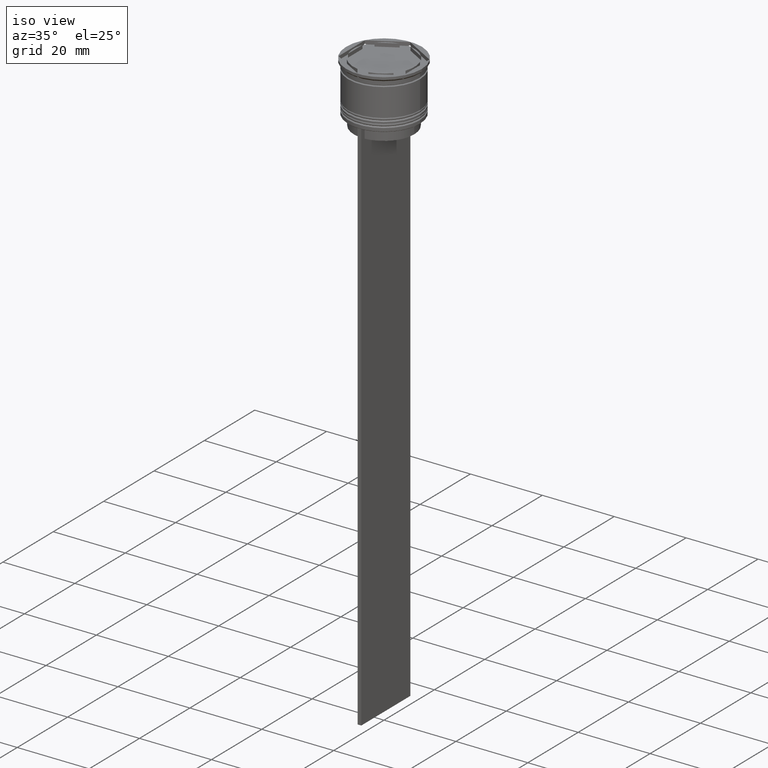
[diagram: clean part render]
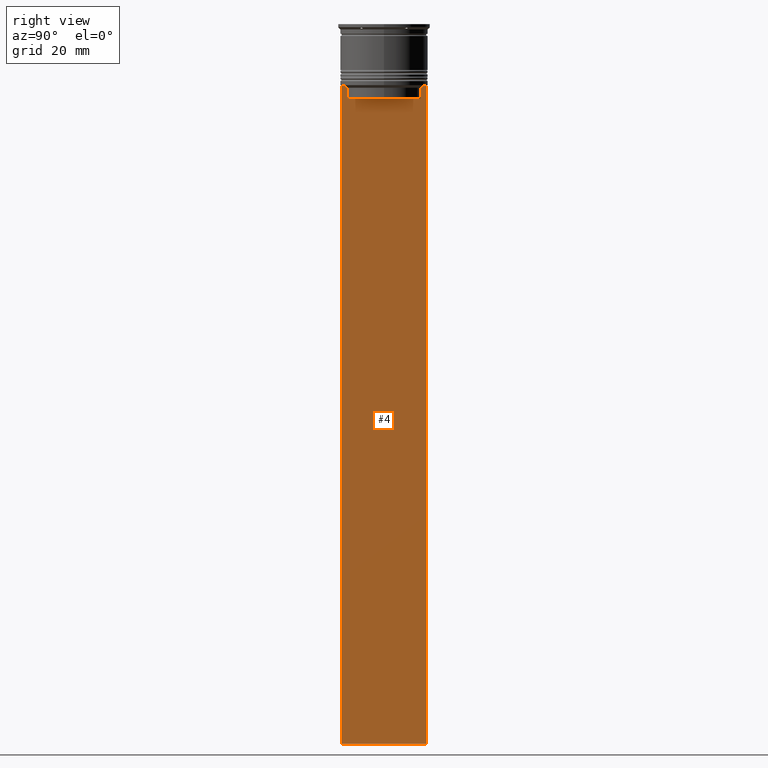
[diagram: tour spotlight — one face highlighted and labeled with its STEP entity id]
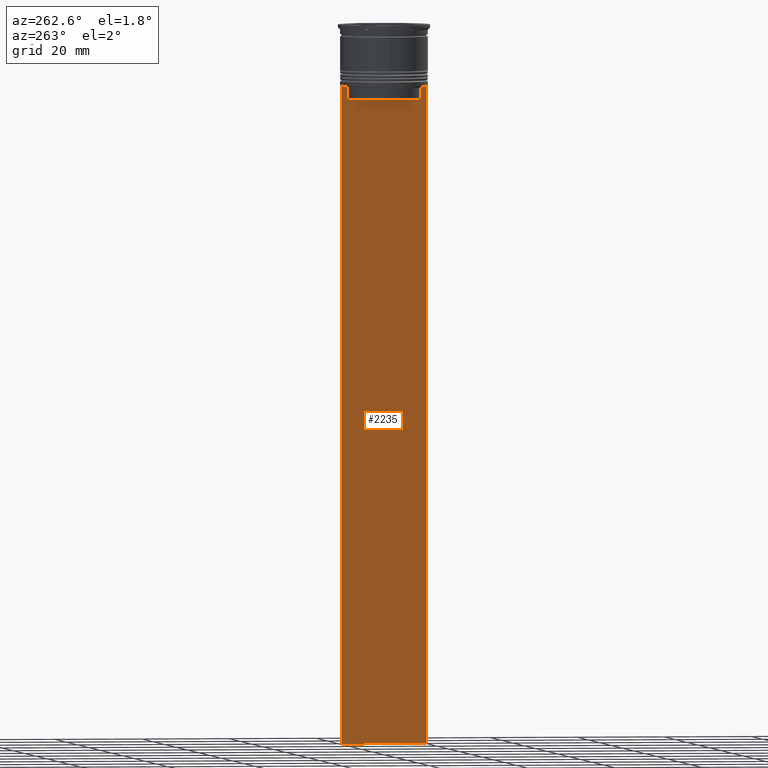
[diagram: tour spotlight — one face highlighted and labeled with its STEP entity id]
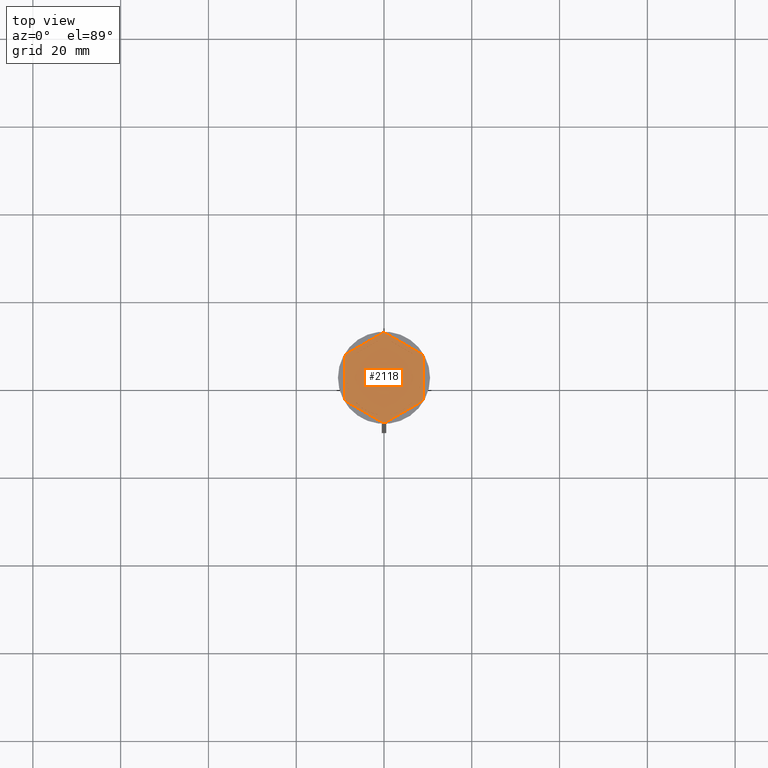
[diagram: tour spotlight — one face highlighted and labeled with its STEP entity id]
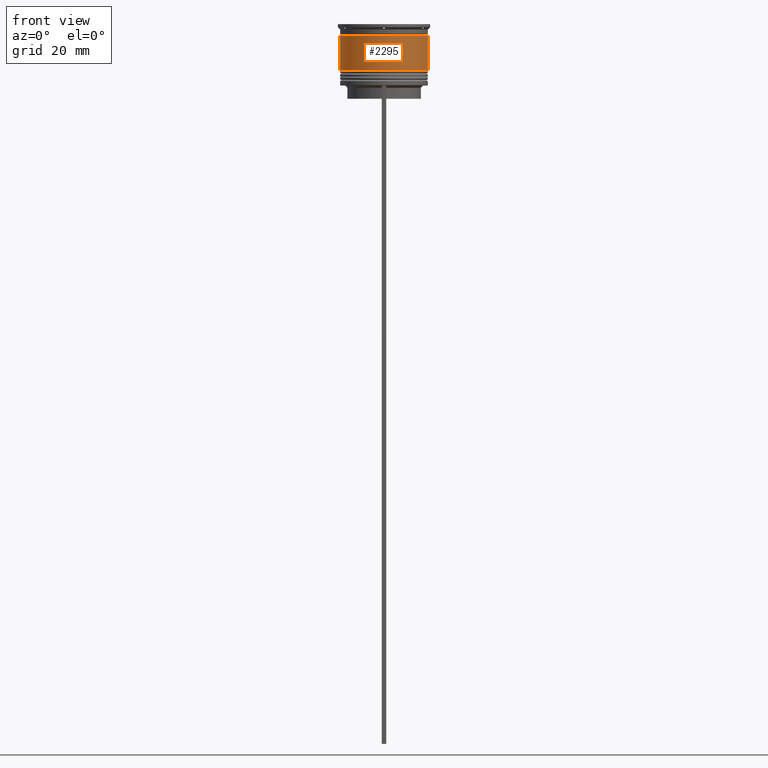
[diagram: tour spotlight — one face highlighted and labeled with its STEP entity id]
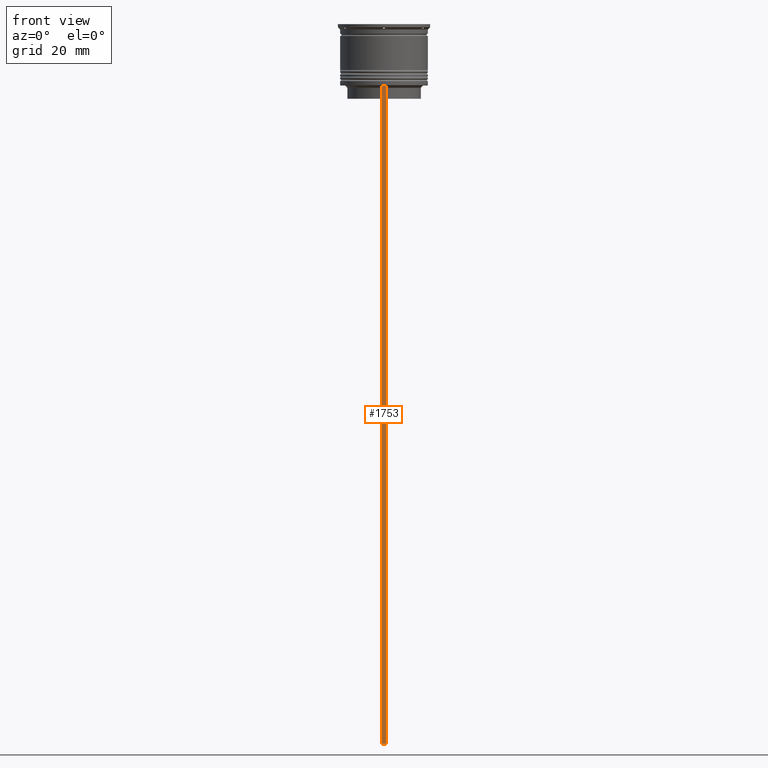
[diagram: tour spotlight — one face highlighted and labeled with its STEP entity id]
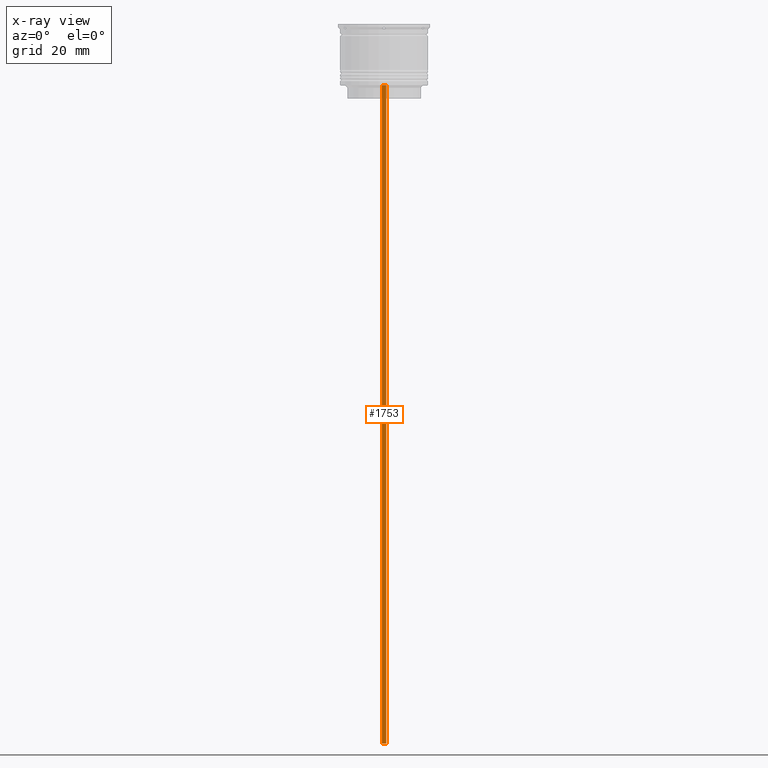
[diagram: x-ray of the same camera — body ghosted, this tour face saturated]
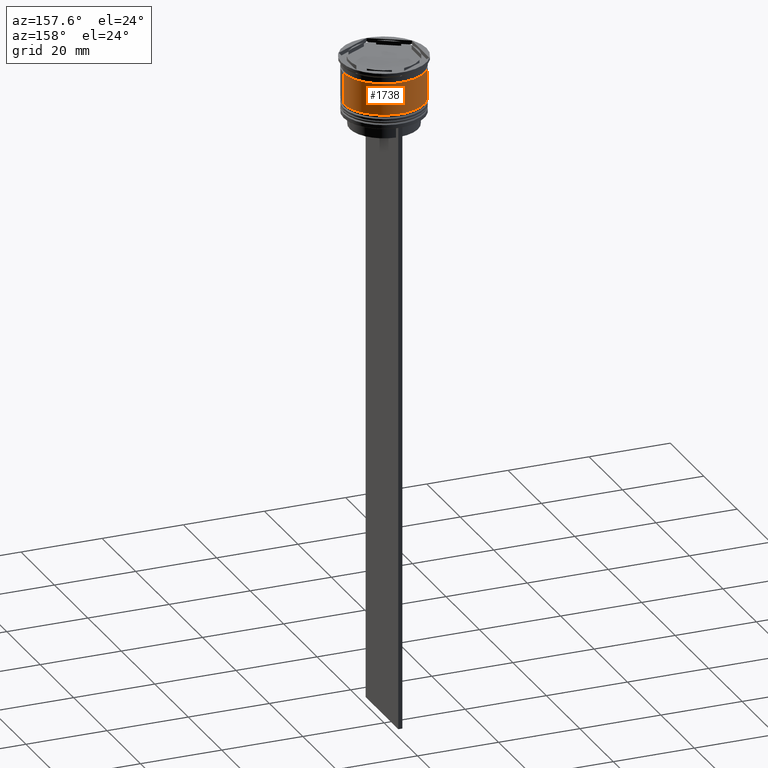
[diagram: tour spotlight — one face highlighted and labeled with its STEP entity id]
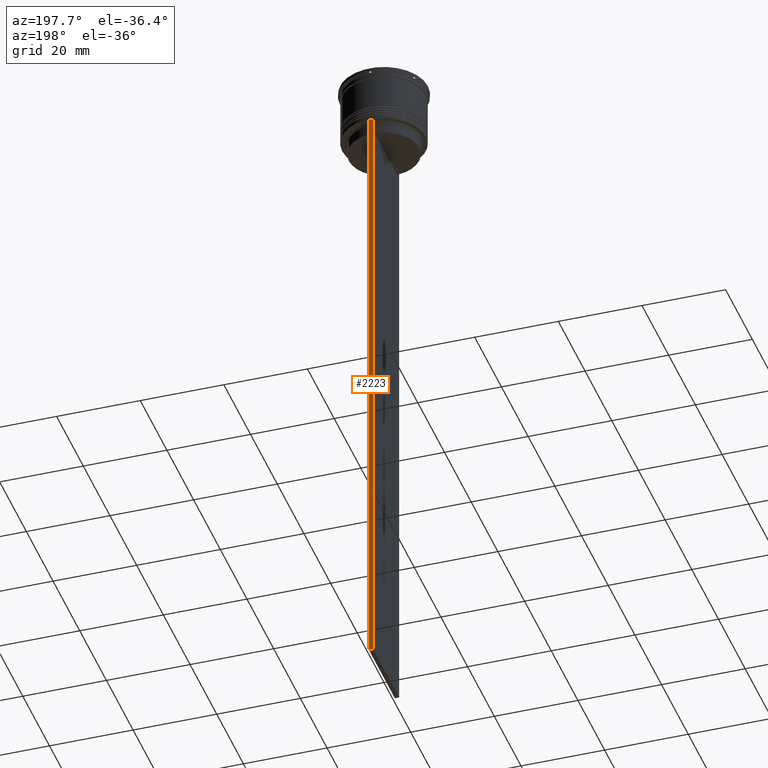
[diagram: tour spotlight — one face highlighted and labeled with its STEP entity id]
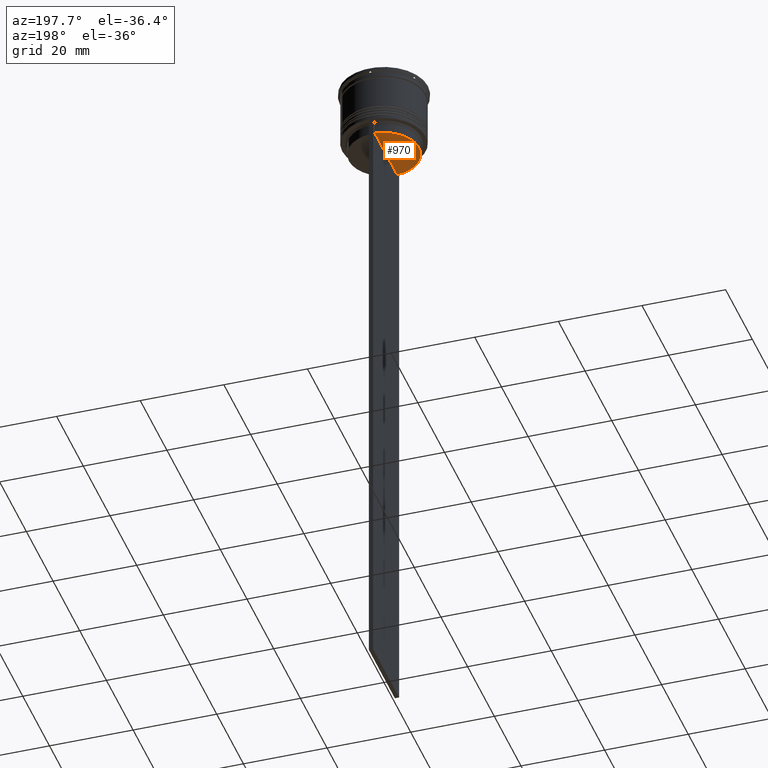
[diagram: tour spotlight — one face highlighted and labeled with its STEP entity id]
A machine part: a face-by-face anatomy tour. The part has 87 B-rep faces; the first image is the clean iso view, then the 8 largest visible faces are spotlighted one at a time (largest first), each with its STEP entity span.

Face 1 — right view, entity #4. In plain terms, the highlighted planar face has unit normal (-1, 0, 0).
Definition (entity closure, byte-faithful):
#4 = ADVANCED_FACE ( 'NONE', ( #1072 ), #1858, .F. ) ;
#8 = ORIENTED_EDGE ( 'NONE', *, *, #137, .T. ) ;
#119 = CARTESIAN_POINT ( 'NONE',  ( 0.4999999999999998890, -8.385105843100616241, -14.50000000000000000 ) ) ;
#125 = EDGE_CURVE ( 'NONE', #2444, #936, #475, .T. ) ;
#137 = EDGE_CURVE ( 'NONE', #542, #2414, #2252, .T. ) ;
#203 = CARTESIAN_POINT ( 'NONE',  ( 0.4999999999999998890, -9.749999999999998224, -14.00000000000000178 ) ) ;
#229 = CARTESIAN_POINT ( 'NONE',  ( 0.4999999999999998890, -9.749999999999998224, -163.9999999999999716 ) ) ;
#285 = DIRECTION ( 'NONE',  ( 0.000000000000000000, 0.000000000000000000, -1.000000000000000000 ) ) ;
#289 = DIRECTION ( 'NONE',  ( -1.000000000000000000, 0.000000000000000000, 0.000000000000000000 ) ) ;
#350 = CARTESIAN_POINT ( 'NONE',  ( 0.4999999999999998890, -9.749999999999998224, 5.525624189766635830 ) ) ;
#351 = EDGE_CURVE ( 'NONE', #2458, #2316, #1901, .T. ) ;
#475 = LINE ( 'NONE', #2307, #1647 ) ;
#508 = DIRECTION ( 'NONE',  ( 0.000000000000000000, 0.000000000000000000, -1.000000000000000000 ) ) ;
#518 = DIRECTION ( 'NONE',  ( 0.000000000000000000, 1.000000000000000000, 0.000000000000000000 ) ) ;
#541 = VECTOR ( 'NONE', #1193, 1000.000000000000000 ) ;
#542 = VERTEX_POINT ( 'NONE', #1190 ) ;
#616 = CARTESIAN_POINT ( 'NONE',  ( 0.4999999999999998890, 9.750000000000001776, -163.9999999999999716 ) ) ;
#636 = ORIENTED_EDGE ( 'NONE', *, *, #125, .T. ) ;
#719 = B_SPLINE_CURVE_WITH_KNOTS ( 'NONE', 3,
 ( #1912, #2509, #735, #725 ),
 .UNSPECIFIED., .F., .F.,
 ( 4, 4 ),
 ( 0.01511546479386908018, 0.01582316445439079997 ),
 .UNSPECIFIED. ) ;
#725 = CARTESIAN_POINT ( 'NONE',  ( 0.4999999999999998890, 8.385105843100616241, -14.50000000000000000 ) ) ;
#735 = CARTESIAN_POINT ( 'NONE',  ( 0.4999999999999998890, 8.552060201981378285, -14.33334167021640582 ) ) ;
#809 = CARTESIAN_POINT ( 'NONE',  ( 0.4999999999999998890, -8.885943956609230199, -14.00000000000000178 ) ) ;
#810 = EDGE_CURVE ( 'NONE', #542, #936, #2067, .T. ) ;
#820 = LINE ( 'NONE', #1431, #1995 ) ;
#879 = CARTESIAN_POINT ( 'NONE',  ( 0.4999999999999998890, -9.749999999999998224, 5.525624189766635830 ) ) ;
#908 = EDGE_CURVE ( 'NONE', #2414, #2458, #719, .T. ) ;
#932 = CARTESIAN_POINT ( 'NONE',  ( 0.4999999999999998890, 8.385105843100616241, 0.000000000000000000 ) ) ;
#936 = VERTEX_POINT ( 'NONE', #616 ) ;
#938 = EDGE_CURVE ( 'NONE', #1400, #2397, #1086, .T. ) ;
#1007 = CARTESIAN_POINT ( 'NONE',  ( 0.4999999999999998890, -9.749999999999998224, -14.00000000000000178 ) ) ;
#1014 = CARTESIAN_POINT ( 'NONE',  ( 0.4999999999999998890, -8.385105843100616241, -17.00000000000000000 ) ) ;
#1032 = VERTEX_POINT ( 'NONE', #1007 ) ;
#1072 = FACE_OUTER_BOUND ( 'NONE', #1210, .T. ) ;
#1080 = VECTOR ( 'NONE', #1877, 1000.000000000000000 ) ;
#1081 = VECTOR ( 'NONE', #508, 1000.000000000000000 ) ;
#1086 = B_SPLINE_CURVE_WITH_KNOTS ( 'NONE', 3,
 ( #1407, #1965, #2399, #1795 ),
 .UNSPECIFIED., .F., .F.,
 ( 4, 4 ),
 ( 0.03898465126933130243, 0.03969388910599658260 ),
 .UNSPECIFIED. ) ;
#1190 = CARTESIAN_POINT ( 'NONE',  ( 0.4999999999999998890, 9.750000000000001776, -14.00000000000000178 ) ) ;
#1191 = CARTESIAN_POINT ( 'NONE',  ( 0.4999999999999998890, 8.885943956609230199, -14.00000000000000178 ) ) ;
#1193 = DIRECTION ( 'NONE',  ( -0.000000000000000000, -0.000000000000000000, 1.000000000000000000 ) ) ;
#1210 = EDGE_LOOP ( 'NONE', ( #8, #1929, #1351, #2096, #1720, #1216, #1710, #2078, #636, #1318 ) ) ;
#1216 = ORIENTED_EDGE ( 'NONE', *, *, #938, .T. ) ;
#1311 = CARTESIAN_POINT ( 'NONE',  ( 0.4999999999999998890, -9.749999999999998224, -14.00000000000000178 ) ) ;
#1318 = ORIENTED_EDGE ( 'NONE', *, *, #810, .F. ) ;
#1351 = ORIENTED_EDGE ( 'NONE', *, *, #351, .T. ) ;
#1356 = CARTESIAN_POINT ( 'NONE',  ( 0.4999999999999998890, 8.385105843100616241, -17.00000000000000000 ) ) ;
#1400 = VERTEX_POINT ( 'NONE', #119 ) ;
#1407 = CARTESIAN_POINT ( 'NONE',  ( 0.4999999999999998890, -8.385105843100616241, -14.50000000000000000 ) ) ;
#1428 = EDGE_CURVE ( 'NONE', #1543, #1400, #2579, .T. ) ;
#1429 = EDGE_CURVE ( 'NONE', #2397, #1032, #1986, .T. ) ;
#1431 = CARTESIAN_POINT ( 'NONE',  ( 0.4999999999999998890, 8.400000000000003908, -17.00000000000000000 ) ) ;
#1445 = VECTOR ( 'NONE', #2064, 1000.000000000000000 ) ;
#1470 = CARTESIAN_POINT ( 'NONE',  ( 0.4999999999999998890, 9.750000000000001776, 5.525624189766635830 ) ) ;
#1486 = DIRECTION ( 'NONE',  ( 0.000000000000000000, 0.000000000000000000, 1.000000000000000000 ) ) ;
#1543 = VERTEX_POINT ( 'NONE', #1014 ) ;
#1590 = CARTESIAN_POINT ( 'NONE',  ( 0.4999999999999998890, 8.385105843100616241, -14.50000000000000000 ) ) ;
#1602 = AXIS2_PLACEMENT_3D ( 'NONE', #879, #289, #1486 ) ;
#1647 = VECTOR ( 'NONE', #518, 1000.000000000000000 ) ;
#1710 = ORIENTED_EDGE ( 'NONE', *, *, #1429, .T. ) ;
#1720 = ORIENTED_EDGE ( 'NONE', *, *, #1428, .T. ) ;
#1728 = DIRECTION ( 'NONE',  ( 0.000000000000000000, -1.000000000000000000, 0.000000000000000000 ) ) ;
#1774 = CARTESIAN_POINT ( 'NONE',  ( 0.4999999999999998890, -8.385105843100616241, 0.000000000000000000 ) ) ;
#1784 = VECTOR ( 'NONE', #285, 1000.000000000000000 ) ;
#1795 = CARTESIAN_POINT ( 'NONE',  ( 0.4999999999999998890, -8.885943956609230199, -14.00000000000000178 ) ) ;
#1842 = DIRECTION ( 'NONE',  ( 0.000000000000000000, -1.000000000000000000, 0.000000000000000000 ) ) ;
#1858 = PLANE ( 'NONE',  #1602 ) ;
#1877 = DIRECTION ( 'NONE',  ( 0.000000000000000000, 0.000000000000000000, -1.000000000000000000 ) ) ;
#1901 = LINE ( 'NONE', #932, #1080 ) ;
#1912 = CARTESIAN_POINT ( 'NONE',  ( 0.4999999999999998890, 8.885943956609230199, -14.00000000000000178 ) ) ;
#1929 = ORIENTED_EDGE ( 'NONE', *, *, #908, .T. ) ;
#1965 = CARTESIAN_POINT ( 'NONE',  ( 0.4999999999999998890, -8.552060194457768105, -14.33334167772667556 ) ) ;
#1986 = LINE ( 'NONE', #203, #2331 ) ;
#1995 = VECTOR ( 'NONE', #1842, 1000.000000000000000 ) ;
#2064 = DIRECTION ( 'NONE',  ( 0.000000000000000000, -1.000000000000000000, 0.000000000000000000 ) ) ;
#2067 = LINE ( 'NONE', #1470, #1081 ) ;
#2068 = LINE ( 'NONE', #350, #1784 ) ;
#2078 = ORIENTED_EDGE ( 'NONE', *, *, #2557, .T. ) ;
#2096 = ORIENTED_EDGE ( 'NONE', *, *, #2379, .T. ) ;
#2252 = LINE ( 'NONE', #1311, #1445 ) ;
#2307 = CARTESIAN_POINT ( 'NONE',  ( 0.4999999999999998890, -9.749999999999998224, -163.9999999999999716 ) ) ;
#2316 = VERTEX_POINT ( 'NONE', #1356 ) ;
#2331 = VECTOR ( 'NONE', #1728, 1000.000000000000000 ) ;
#2379 = EDGE_CURVE ( 'NONE', #2316, #1543, #820, .T. ) ;
#2397 = VERTEX_POINT ( 'NONE', #809 ) ;
#2399 = CARTESIAN_POINT ( 'NONE',  ( 0.4999999999999998890, -8.719005764482787413, -14.16667454151160044 ) ) ;
#2414 = VERTEX_POINT ( 'NONE', #1191 ) ;
#2444 = VERTEX_POINT ( 'NONE', #229 ) ;
#2458 = VERTEX_POINT ( 'NONE', #1590 ) ;
#2509 = CARTESIAN_POINT ( 'NONE',  ( 0.4999999999999998890, 8.719005771582347464, -14.16667453442325453 ) ) ;
#2557 = EDGE_CURVE ( 'NONE', #1032, #2444, #2068, .T. ) ;
#2579 = LINE ( 'NONE', #1774, #541 ) ;

Face 2 — auxiliary view, entity #2235. In plain terms, the highlighted planar face has unit normal (-1, 0, 0).
Definition (entity closure, byte-faithful):
#33 = DIRECTION ( 'NONE',  ( 0.000000000000000000, -1.000000000000000000, 0.000000000000000000 ) ) ;
#66 = LINE ( 'NONE', #1681, #1737 ) ;
#98 = CARTESIAN_POINT ( 'NONE',  ( -0.5000000000000001110, -8.719005764482790966, -14.16667454151159689 ) ) ;
#116 = CARTESIAN_POINT ( 'NONE',  ( -0.5000000000000001110, 8.385105843100616241, -14.50000000000000000 ) ) ;
#127 = VECTOR ( 'NONE', #33, 1000.000000000000000 ) ;
#163 = EDGE_CURVE ( 'NONE', #1961, #1465, #2421, .T. ) ;
#300 = DIRECTION ( 'NONE',  ( 0.000000000000000000, 0.000000000000000000, -1.000000000000000000 ) ) ;
#330 = VERTEX_POINT ( 'NONE', #116 ) ;
#338 = DIRECTION ( 'NONE',  ( 0.000000000000000000, 0.000000000000000000, 1.000000000000000000 ) ) ;
#384 = VERTEX_POINT ( 'NONE', #2284 ) ;
#404 = VECTOR ( 'NONE', #1075, 1000.000000000000000 ) ;
#426 = ORIENTED_EDGE ( 'NONE', *, *, #1098, .F. ) ;
#432 = CARTESIAN_POINT ( 'NONE',  ( -0.5000000000000001110, 8.719005771582351016, -14.16667453442324742 ) ) ;
#435 = CARTESIAN_POINT ( 'NONE',  ( -0.5000000000000001110, 8.885943956609230199, -14.00000000000000178 ) ) ;
#538 = ORIENTED_EDGE ( 'NONE', *, *, #163, .F. ) ;
#584 = DIRECTION ( 'NONE',  ( 0.000000000000000000, -1.000000000000000000, 0.000000000000000000 ) ) ;
#646 = DIRECTION ( 'NONE',  ( -0.000000000000000000, -0.000000000000000000, 1.000000000000000000 ) ) ;
#648 = CARTESIAN_POINT ( 'NONE',  ( -0.5000000000000001110, -8.385105843100616241, -14.50000000000000000 ) ) ;
#663 = CARTESIAN_POINT ( 'NONE',  ( -0.5000000000000001110, 8.552060201981381837, -14.33334167021640226 ) ) ;
#679 = VERTEX_POINT ( 'NONE', #2406 ) ;
#682 = CARTESIAN_POINT ( 'NONE',  ( -0.5000000000000001110, -9.749999999999998224, -14.00000000000000178 ) ) ;
#711 = VECTOR ( 'NONE', #300, 1000.000000000000000 ) ;
#751 = CARTESIAN_POINT ( 'NONE',  ( -0.5000000000000001110, -8.885943956609230199, -14.00000000000000178 ) ) ;
#786 = VECTOR ( 'NONE', #1848, 1000.000000000000000 ) ;
#842 = EDGE_CURVE ( 'NONE', #1308, #1920, #2099, .T. ) ;
#844 = VERTEX_POINT ( 'NONE', #682 ) ;
#870 = CARTESIAN_POINT ( 'NONE',  ( -0.5000000000000001110, -8.552060194457773434, -14.33334167772667023 ) ) ;
#885 = VECTOR ( 'NONE', #891, 1000.000000000000000 ) ;
#891 = DIRECTION ( 'NONE',  ( 0.000000000000000000, -1.000000000000000000, 0.000000000000000000 ) ) ;
#1049 = EDGE_CURVE ( 'NONE', #844, #679, #2474, .T. ) ;
#1067 = EDGE_CURVE ( 'NONE', #679, #1920, #1240, .T. ) ;
#1075 = DIRECTION ( 'NONE',  ( 0.000000000000000000, 1.000000000000000000, 0.000000000000000000 ) ) ;
#1098 = EDGE_CURVE ( 'NONE', #2327, #1961, #66, .T. ) ;
#1155 = CARTESIAN_POINT ( 'NONE',  ( -0.5000000000000001110, -9.749999999999998224, 5.525624189766635830 ) ) ;
#1203 = CARTESIAN_POINT ( 'NONE',  ( -0.5000000000000001110, 9.750000000000001776, -163.9999999999999716 ) ) ;
#1240 = LINE ( 'NONE', #2443, #404 ) ;
#1270 = CARTESIAN_POINT ( 'NONE',  ( -0.5000000000000001110, -8.385105843100616241, -14.50000000000000000 ) ) ;
#1274 = LINE ( 'NONE', #1899, #885 ) ;
#1280 = CARTESIAN_POINT ( 'NONE',  ( -0.5000000000000001110, -9.749999999999998224, 5.525624189766635830 ) ) ;
#1290 = VECTOR ( 'NONE', #1484, 1000.000000000000000 ) ;
#1308 = VERTEX_POINT ( 'NONE', #1893 ) ;
#1327 = CARTESIAN_POINT ( 'NONE',  ( -0.5000000000000001110, 8.385105843100616241, 0.000000000000000000 ) ) ;
#1344 = EDGE_LOOP ( 'NONE', ( #1783, #2556, #1628, #2075, #2440, #2134, #538, #426, #1387, #1880 ) ) ;
#1387 = ORIENTED_EDGE ( 'NONE', *, *, #1575, .F. ) ;
#1452 = CARTESIAN_POINT ( 'NONE',  ( -0.5000000000000001110, 8.385105843100616241, -14.50000000000000000 ) ) ;
#1460 = AXIS2_PLACEMENT_3D ( 'NONE', #1155, #2144, #338 ) ;
#1465 = VERTEX_POINT ( 'NONE', #751 ) ;
#1484 = DIRECTION ( 'NONE',  ( 0.000000000000000000, 0.000000000000000000, -1.000000000000000000 ) ) ;
#1555 = PLANE ( 'NONE',  #1460 ) ;
#1575 = EDGE_CURVE ( 'NONE', #384, #2327, #2042, .T. ) ;
#1628 = ORIENTED_EDGE ( 'NONE', *, *, #842, .T. ) ;
#1681 = CARTESIAN_POINT ( 'NONE',  ( -0.5000000000000001110, -8.385105843100616241, 0.000000000000000000 ) ) ;
#1714 = EDGE_CURVE ( 'NONE', #330, #384, #2320, .T. ) ;
#1737 = VECTOR ( 'NONE', #646, 1000.000000000000000 ) ;
#1772 = CARTESIAN_POINT ( 'NONE',  ( -0.5000000000000001110, -8.385105843100616241, -17.00000000000000000 ) ) ;
#1783 = ORIENTED_EDGE ( 'NONE', *, *, #2047, .F. ) ;
#1848 = DIRECTION ( 'NONE',  ( 0.000000000000000000, 0.000000000000000000, -1.000000000000000000 ) ) ;
#1880 = ORIENTED_EDGE ( 'NONE', *, *, #1714, .F. ) ;
#1893 = CARTESIAN_POINT ( 'NONE',  ( -0.5000000000000001110, 9.749999999999998224, -14.00000000000000178 ) ) ;
#1899 = CARTESIAN_POINT ( 'NONE',  ( -0.5000000000000001110, -9.749999999999998224, -14.00000000000000178 ) ) ;
#1920 = VERTEX_POINT ( 'NONE', #1203 ) ;
#1961 = VERTEX_POINT ( 'NONE', #648 ) ;
#2042 = LINE ( 'NONE', #2056, #127 ) ;
#2047 = EDGE_CURVE ( 'NONE', #2401, #330, #2081, .T. ) ;
#2056 = CARTESIAN_POINT ( 'NONE',  ( -0.5000000000000001110, 8.400000000000003908, -17.00000000000000000 ) ) ;
#2075 = ORIENTED_EDGE ( 'NONE', *, *, #1067, .F. ) ;
#2081 = B_SPLINE_CURVE_WITH_KNOTS ( 'NONE', 3,
 ( #2279, #432, #663, #1452 ),
 .UNSPECIFIED., .F., .F.,
 ( 4, 4 ),
 ( 0.01511546479386908018, 0.01582316445439079997 ),
 .UNSPECIFIED. ) ;
#2086 = CARTESIAN_POINT ( 'NONE',  ( -0.5000000000000001110, 9.750000000000001776, 5.525624189766635830 ) ) ;
#2099 = LINE ( 'NONE', #2086, #711 ) ;
#2134 = ORIENTED_EDGE ( 'NONE', *, *, #2239, .F. ) ;
#2136 = CARTESIAN_POINT ( 'NONE',  ( -0.5000000000000001110, -9.749999999999998224, -14.00000000000000178 ) ) ;
#2144 = DIRECTION ( 'NONE',  ( -1.000000000000000000, 0.000000000000000000, 0.000000000000000000 ) ) ;
#2235 = ADVANCED_FACE ( 'NONE', ( #2578 ), #1555, .T. ) ;
#2239 = EDGE_CURVE ( 'NONE', #1465, #844, #2344, .T. ) ;
#2279 = CARTESIAN_POINT ( 'NONE',  ( -0.5000000000000001110, 8.885943956609230199, -14.00000000000000178 ) ) ;
#2284 = CARTESIAN_POINT ( 'NONE',  ( -0.5000000000000001110, 8.385105843100616241, -17.00000000000000000 ) ) ;
#2299 = VECTOR ( 'NONE', #584, 1000.000000000000000 ) ;
#2320 = LINE ( 'NONE', #1327, #1290 ) ;
#2327 = VERTEX_POINT ( 'NONE', #1772 ) ;
#2344 = LINE ( 'NONE', #2136, #2299 ) ;
#2401 = VERTEX_POINT ( 'NONE', #435 ) ;
#2406 = CARTESIAN_POINT ( 'NONE',  ( -0.5000000000000001110, -9.749999999999998224, -163.9999999999999716 ) ) ;
#2421 = B_SPLINE_CURVE_WITH_KNOTS ( 'NONE', 3,
 ( #1270, #870, #98, #2489 ),
 .UNSPECIFIED., .F., .F.,
 ( 4, 4 ),
 ( 0.03898465126933130243, 0.03969388910599658260 ),
 .UNSPECIFIED. ) ;
#2440 = ORIENTED_EDGE ( 'NONE', *, *, #1049, .F. ) ;
#2443 = CARTESIAN_POINT ( 'NONE',  ( -0.5000000000000001110, -9.749999999999998224, -163.9999999999999716 ) ) ;
#2474 = LINE ( 'NONE', #1280, #786 ) ;
#2489 = CARTESIAN_POINT ( 'NONE',  ( -0.5000000000000001110, -8.885943956609230199, -14.00000000000000178 ) ) ;
#2544 = EDGE_CURVE ( 'NONE', #1308, #2401, #1274, .T. ) ;
#2556 = ORIENTED_EDGE ( 'NONE', *, *, #2544, .F. ) ;
#2578 = FACE_OUTER_BOUND ( 'NONE', #1344, .T. ) ;

Face 3 — top view, entity #2118. In plain terms, the highlighted planar face has unit normal (0, 0, 1).
Definition (entity closure, byte-faithful):
#3 = CARTESIAN_POINT ( 'NONE',  ( -8.500000000000000000, 0.000000000000000000, -1.000000000000000000 ) ) ;
#28 = CIRCLE ( 'NONE', #1493, 10.19999999999999574 ) ;
#39 = ORIENTED_EDGE ( 'NONE', *, *, #2207, .F. ) ;
#67 = ORIENTED_EDGE ( 'NONE', *, *, #649, .F. ) ;
#77 = DIRECTION ( 'NONE',  ( 1.000000000000000000, 0.000000000000000000, 0.000000000000000000 ) ) ;
#106 = DIRECTION ( 'NONE',  ( 1.000000000000000000, 0.000000000000000000, 0.000000000000000000 ) ) ;
#115 = CARTESIAN_POINT ( 'NONE',  ( -8.000000000000000000, 4.618802153517004072, -1.000000000000000888 ) ) ;
#136 = VERTEX_POINT ( 'NONE', #1713 ) ;
#147 = CARTESIAN_POINT ( 'NONE',  ( 0.000000000000000000, 0.000000000000000000, -1.000000000000000000 ) ) ;
#152 = ORIENTED_EDGE ( 'NONE', *, *, #1974, .F. ) ;
#155 = VECTOR ( 'NONE', #386, 1000.000000000000114 ) ;
#162 = AXIS2_PLACEMENT_3D ( 'NONE', #626, #1441, #2407 ) ;
#171 = DIRECTION ( 'NONE',  ( 1.000000000000000000, 0.000000000000000000, 0.000000000000000000 ) ) ;
#174 = EDGE_CURVE ( 'NONE', #2317, #2058, #680, .T. ) ;
#182 = CARTESIAN_POINT ( 'NONE',  ( 0.000000000000000000, 0.000000000000000000, -1.000000000000000000 ) ) ;
#194 = ORIENTED_EDGE ( 'NONE', *, *, #2062, .F. ) ;
#202 = CARTESIAN_POINT ( 'NONE',  ( 8.000000000000000000, 2.872281323269014752, -1.000000000000000888 ) ) ;
#239 = DIRECTION ( 'NONE',  ( 1.000000000000000000, 0.000000000000000000, 0.000000000000000000 ) ) ;
#240 = AXIS2_PLACEMENT_3D ( 'NONE', #147, #1338, #171 ) ;
#279 = DIRECTION ( 'NONE',  ( -0.8660254037844385966, 0.4999999999999999445, 0.000000000000000000 ) ) ;
#280 = CARTESIAN_POINT ( 'NONE',  ( 0.000000000000000000, 0.000000000000000000, -1.000000000000000000 ) ) ;
#283 = CARTESIAN_POINT ( 'NONE',  ( -8.000000000000000000, 2.872281323269016085, -1.000000000000000888 ) ) ;
#332 = VERTEX_POINT ( 'NONE', #2495 ) ;
#334 = CIRCLE ( 'NONE', #794, 8.500000000000000000 ) ;
#336 = CIRCLE ( 'NONE', #162, 8.500000000000000000 ) ;
#341 = ORIENTED_EDGE ( 'NONE', *, *, #2308, .F. ) ;
#348 = ORIENTED_EDGE ( 'NONE', *, *, #1142, .F. ) ;
#360 = VERTEX_POINT ( 'NONE', #1689 ) ;
#370 = EDGE_CURVE ( 'NONE', #2355, #1519, #2071, .T. ) ;
#371 = CARTESIAN_POINT ( 'NONE',  ( -9.000000000000001776, 5.196152422706632024, -1.000000000000000000 ) ) ;
#380 = CARTESIAN_POINT ( 'NONE',  ( 9.000000000000001776, -5.196152422706632024, -1.000000000000000000 ) ) ;
#385 = VERTEX_POINT ( 'NONE', #1315 ) ;
#386 = DIRECTION ( 'NONE',  ( 0.8660254037844384856, 0.5000000000000003331, -0.000000000000000000 ) ) ;
#388 = CARTESIAN_POINT ( 'NONE',  ( 9.000000000000001776, 4.799999999999988276, -1.000000000000000000 ) ) ;
#390 = CARTESIAN_POINT ( 'NONE',  ( -8.000000000000000000, -2.872281323269016085, -1.000000000000000888 ) ) ;
#431 = ORIENTED_EDGE ( 'NONE', *, *, #507, .F. ) ;
#439 = VERTEX_POINT ( 'NONE', #2271 ) ;
#443 = ORIENTED_EDGE ( 'NONE', *, *, #998, .F. ) ;
#445 = CARTESIAN_POINT ( 'NONE',  ( 0.3430780618347050170, 10.19422863405994306, -1.000000000000000000 ) ) ;
#448 = EDGE_CURVE ( 'NONE', #854, #1973, #963, .T. ) ;
#454 = CIRCLE ( 'NONE', #1824, 8.500000000000000000 ) ;
#463 = CARTESIAN_POINT ( 'NONE',  ( 0.000000000000000000, 0.000000000000000000, -1.000000000000000000 ) ) ;
#481 = VERTEX_POINT ( 'NONE', #545 ) ;
#483 = ORIENTED_EDGE ( 'NONE', *, *, #1724, .F. ) ;
#486 = ORIENTED_EDGE ( 'NONE', *, *, #2451, .F. ) ;
#488 = DIRECTION ( 'NONE',  ( 0.8660254037844385966, -0.4999999999999999445, 0.000000000000000000 ) ) ;
#507 = EDGE_CURVE ( 'NONE', #1519, #2355, #569, .T. ) ;
#511 = DIRECTION ( 'NONE',  ( 0.8660254037844387076, -0.4999999999999997224, 0.000000000000000000 ) ) ;
#522 = DIRECTION ( 'NONE',  ( 0.000000000000000000, 0.000000000000000000, 1.000000000000000000 ) ) ;
#524 = EDGE_CURVE ( 'NONE', #922, #1973, #750, .T. ) ;
#528 = ORIENTED_EDGE ( 'NONE', *, *, #1874, .F. ) ;
#537 = LINE ( 'NONE', #1103, #1085 ) ;
#544 = CIRCLE ( 'NONE', #2160, 8.500000000000000000 ) ;
#545 = CARTESIAN_POINT ( 'NONE',  ( -9.000000000000001776, 4.799999999999988276, -1.000000000000000000 ) ) ;
#548 = EDGE_LOOP ( 'NONE', ( #1296, #1379 ) ) ;
#549 = ORIENTED_EDGE ( 'NONE', *, *, #1787, .F. ) ;
#569 = CIRCLE ( 'NONE', #240, 8.500000000000000000 ) ;
#574 = VECTOR ( 'NONE', #2034, 1000.000000000000114 ) ;
#617 = VECTOR ( 'NONE', #2103, 1000.000000000000000 ) ;
#622 = AXIS2_PLACEMENT_3D ( 'NONE', #907, #933, #106 ) ;
#625 = VECTOR ( 'NONE', #821, 1000.000000000000000 ) ;
#626 = CARTESIAN_POINT ( 'NONE',  ( 0.000000000000000000, 0.000000000000000000, -1.000000000000000000 ) ) ;
#630 = EDGE_LOOP ( 'NONE', ( #39, #348 ) ) ;
#649 = EDGE_CURVE ( 'NONE', #360, #1964, #28, .T. ) ;
#661 = VECTOR ( 'NONE', #279, 1000.000000000000114 ) ;
#673 = CIRCLE ( 'NONE', #2577, 8.500000000000000000 ) ;
#680 = LINE ( 'NONE', #1468, #661 ) ;
#706 = DIRECTION ( 'NONE',  ( 1.000000000000000000, 0.000000000000000000, 0.000000000000000000 ) ) ;
#709 = VECTOR ( 'NONE', #1179, 1000.000000000000227 ) ;
#750 = CIRCLE ( 'NONE', #2360, 10.19999999999999574 ) ;
#762 = DIRECTION ( 'NONE',  ( -0.000000000000000000, -0.000000000000000000, -1.000000000000000000 ) ) ;
#773 = ORIENTED_EDGE ( 'NONE', *, *, #1768, .T. ) ;
#792 = VECTOR ( 'NONE', #511, 1000.000000000000114 ) ;
#794 = AXIS2_PLACEMENT_3D ( 'NONE', #463, #2065, #239 ) ;
#798 = DIRECTION ( 'NONE',  ( 1.000000000000000000, 0.000000000000000000, 0.000000000000000000 ) ) ;
#819 = DIRECTION ( 'NONE',  ( 1.000000000000000000, 0.000000000000000000, 0.000000000000000000 ) ) ;
#821 = DIRECTION ( 'NONE',  ( -0.8660254037844385966, -0.5000000000000001110, 0.000000000000000000 ) ) ;
#836 = CIRCLE ( 'NONE', #1743, 10.19999999999999574 ) ;
#843 = CARTESIAN_POINT ( 'NONE',  ( -8.656921938165297092, 5.394228634059953009, -1.000000000000000000 ) ) ;
#853 = CARTESIAN_POINT ( 'NONE',  ( 0.000000000000000000, 0.000000000000000000, -1.000000000000000000 ) ) ;
#854 = VERTEX_POINT ( 'NONE', #2268 ) ;
#892 = CARTESIAN_POINT ( 'NONE',  ( -9.000000000000001776, -5.196152422706632912, -1.000000000000000000 ) ) ;
#894 = ORIENTED_EDGE ( 'NONE', *, *, #1301, .T. ) ;
#899 = VERTEX_POINT ( 'NONE', #283 ) ;
#907 = CARTESIAN_POINT ( 'NONE',  ( 0.000000000000000000, 0.000000000000000000, -1.000000000000000000 ) ) ;
#917 = DIRECTION ( 'NONE',  ( 0.000000000000000000, 1.000000000000000000, 0.000000000000000000 ) ) ;
#922 = VERTEX_POINT ( 'NONE', #1702 ) ;
#931 = DIRECTION ( 'NONE',  ( 1.000000000000000000, 0.000000000000000000, 0.000000000000000000 ) ) ;
#933 = DIRECTION ( 'NONE',  ( -0.000000000000000000, -0.000000000000000000, -1.000000000000000000 ) ) ;
#946 = EDGE_LOOP ( 'NONE', ( #2558, #443 ) ) ;
#951 = CARTESIAN_POINT ( 'NONE',  ( 0.000000000000000000, 0.000000000000000000, -1.000000000000000000 ) ) ;
#963 = LINE ( 'NONE', #1144, #709 ) ;
#983 = DIRECTION ( 'NONE',  ( 1.000000000000000000, 8.881784197001252323E-16, 0.000000000000000000 ) ) ;
#998 = EDGE_CURVE ( 'NONE', #332, #136, #1572, .T. ) ;
#1017 = ORIENTED_EDGE ( 'NONE', *, *, #1612, .T. ) ;
#1023 = CARTESIAN_POINT ( 'NONE',  ( -0.3430780618347024080, -10.19422863405994306, -1.000000000000000000 ) ) ;
#1034 = ORIENTED_EDGE ( 'NONE', *, *, #370, .F. ) ;
#1038 = CARTESIAN_POINT ( 'NONE',  ( 1.512531407233452363, -8.364343891910017703, -1.000000000000000888 ) ) ;
#1042 = CARTESIAN_POINT ( 'NONE',  ( 1.512531407233448366, 8.364343891910017703, -1.000000000000000888 ) ) ;
#1085 = VECTOR ( 'NONE', #1278, 1000.000000000000000 ) ;
#1103 = CARTESIAN_POINT ( 'NONE',  ( 2.607697573705103160E-15, -10.39230484541326405, -1.000000000000000000 ) ) ;
#1133 = AXIS2_PLACEMENT_3D ( 'NONE', #951, #762, #798 ) ;
#1142 = EDGE_CURVE ( 'NONE', #385, #2063, #1226, .T. ) ;
#1144 = CARTESIAN_POINT ( 'NONE',  ( 9.000000000000001776, 5.196152422706632912, -1.000000000000000000 ) ) ;
#1179 = DIRECTION ( 'NONE',  ( -0.8660254037844385966, 0.5000000000000000000, 0.000000000000000000 ) ) ;
#1180 = DIRECTION ( 'NONE',  ( 0.000000000000000000, 1.000000000000000000, 0.000000000000000000 ) ) ;
#1189 = CARTESIAN_POINT ( 'NONE',  ( 0.000000000000000000, 0.000000000000000000, -1.000000000000000000 ) ) ;
#1224 = FACE_BOUND ( 'NONE', #2433, .T. ) ;
#1226 = LINE ( 'NONE', #2049, #574 ) ;
#1233 = CARTESIAN_POINT ( 'NONE',  ( 0.000000000000000000, 10.39230484541326582, -1.000000000000000000 ) ) ;
#1260 = LINE ( 'NONE', #2434, #1334 ) ;
#1271 = CARTESIAN_POINT ( 'NONE',  ( -6.487468592766552078, -5.492062568641001619, -1.000000000000000888 ) ) ;
#1278 = DIRECTION ( 'NONE',  ( 0.8660254037844385966, 0.5000000000000001110, 0.000000000000000000 ) ) ;
#1279 = ORIENTED_EDGE ( 'NONE', *, *, #2082, .F. ) ;
#1291 = DIRECTION ( 'NONE',  ( 0.000000000000000000, 0.000000000000000000, 1.000000000000000000 ) ) ;
#1296 = ORIENTED_EDGE ( 'NONE', *, *, #1750, .F. ) ;
#1301 = EDGE_CURVE ( 'NONE', #1677, #2248, #537, .T. ) ;
#1305 = CARTESIAN_POINT ( 'NONE',  ( 7.999999999999998224, -4.618802153517008513, -1.000000000000000888 ) ) ;
#1314 = CARTESIAN_POINT ( 'NONE',  ( 6.487468592766552078, 5.492062568641001619, -1.000000000000000888 ) ) ;
#1315 = CARTESIAN_POINT ( 'NONE',  ( 6.487468592766547637, -5.492062568641006060, -1.000000000000000888 ) ) ;
#1319 = EDGE_CURVE ( 'NONE', #854, #1803, #1569, .T. ) ;
#1334 = VECTOR ( 'NONE', #488, 1000.000000000000114 ) ;
#1338 = DIRECTION ( 'NONE',  ( 0.000000000000000000, 0.000000000000000000, 1.000000000000000000 ) ) ;
#1340 = DIRECTION ( 'NONE',  ( 0.000000000000000000, -1.000000000000000000, 0.000000000000000000 ) ) ;
#1371 = LINE ( 'NONE', #380, #2254 ) ;
#1379 = ORIENTED_EDGE ( 'NONE', *, *, #174, .F. ) ;
#1411 = EDGE_CURVE ( 'NONE', #481, #1964, #2145, .T. ) ;
#1422 = DIRECTION ( 'NONE',  ( 1.000000000000000000, 0.000000000000000000, -0.000000000000000000 ) ) ;
#1435 = FACE_BOUND ( 'NONE', #2386, .T. ) ;
#1441 = DIRECTION ( 'NONE',  ( 0.000000000000000000, 0.000000000000000000, 1.000000000000000000 ) ) ;
#1462 = EDGE_LOOP ( 'NONE', ( #483, #549, #194 ) ) ;
#1468 = CARTESIAN_POINT ( 'NONE',  ( -8.000000000000000000, -4.618802153517006737, -1.000000000000000888 ) ) ;
#1477 = ORIENTED_EDGE ( 'NONE', *, *, #524, .F. ) ;
#1493 = AXIS2_PLACEMENT_3D ( 'NONE', #1642, #2040, #819 ) ;
#1508 = EDGE_LOOP ( 'NONE', ( #1937, #2460, #2017, #1477, #1017, #341, #1592, #67, #773, #1279, #894, #528 ) ) ;
#1519 = VERTEX_POINT ( 'NONE', #1567 ) ;
#1525 = CARTESIAN_POINT ( 'NONE',  ( 0.000000000000000000, 0.000000000000000000, -1.000000000000000000 ) ) ;
#1545 = DIRECTION ( 'NONE',  ( 1.000000000000000000, 1.598721155460225418E-14, 0.000000000000000000 ) ) ;
#1567 = CARTESIAN_POINT ( 'NONE',  ( 8.000000000000000000, -2.872281323269017417, -1.000000000000000888 ) ) ;
#1569 = CIRCLE ( 'NONE', #622, 10.19999999999999574 ) ;
#1572 = LINE ( 'NONE', #2375, #155 ) ;
#1578 = DIRECTION ( 'NONE',  ( -0.000000000000000000, -0.000000000000000000, -1.000000000000000000 ) ) ;
#1592 = ORIENTED_EDGE ( 'NONE', *, *, #1411, .T. ) ;
#1612 = EDGE_CURVE ( 'NONE', #922, #2165, #2452, .T. ) ;
#1624 = FACE_BOUND ( 'NONE', #630, .T. ) ;
#1642 = CARTESIAN_POINT ( 'NONE',  ( 0.000000000000000000, 0.000000000000000000, -1.000000000000000000 ) ) ;
#1648 = FACE_BOUND ( 'NONE', #946, .T. ) ;
#1656 = VECTOR ( 'NONE', #1340, 1000.000000000000000 ) ;
#1663 = CARTESIAN_POINT ( 'NONE',  ( 0.000000000000000000, 0.000000000000000000, -1.000000000000000000 ) ) ;
#1666 = VERTEX_POINT ( 'NONE', #1314 ) ;
#1667 = FACE_BOUND ( 'NONE', #548, .T. ) ;
#1677 = VERTEX_POINT ( 'NONE', #2089 ) ;
#1682 = EDGE_CURVE ( 'NONE', #136, #332, #673, .T. ) ;
#1689 = CARTESIAN_POINT ( 'NONE',  ( -8.656921938165295316, -5.394228634059957450, -1.000000000000000000 ) ) ;
#1702 = CARTESIAN_POINT ( 'NONE',  ( -0.3430780618347059052, 10.19422863405994306, -1.000000000000000000 ) ) ;
#1713 = CARTESIAN_POINT ( 'NONE',  ( -1.512531407233451475, 8.364343891910017703, -1.000000000000000888 ) ) ;
#1724 = EDGE_CURVE ( 'NONE', #899, #1845, #1777, .T. ) ;
#1743 = AXIS2_PLACEMENT_3D ( 'NONE', #1189, #2126, #983 ) ;
#1746 = CIRCLE ( 'NONE', #1133, 10.19999999999999574 ) ;
#1750 = EDGE_CURVE ( 'NONE', #2058, #2317, #454, .T. ) ;
#1768 = EDGE_CURVE ( 'NONE', #360, #1825, #2480, .T. ) ;
#1777 = CIRCLE ( 'NONE', #2201, 8.500000000000000000 ) ;
#1787 = EDGE_CURVE ( 'NONE', #2398, #899, #1900, .T. ) ;
#1803 = VERTEX_POINT ( 'NONE', #388 ) ;
#1820 = CARTESIAN_POINT ( 'NONE',  ( 0.000000000000000000, 0.000000000000000000, -1.000000000000000000 ) ) ;
#1824 = AXIS2_PLACEMENT_3D ( 'NONE', #1663, #1915, #2069 ) ;
#1825 = VERTEX_POINT ( 'NONE', #1023 ) ;
#1845 = VERTEX_POINT ( 'NONE', #3 ) ;
#1846 = DIRECTION ( 'NONE',  ( 0.000000000000000000, 0.000000000000000000, 1.000000000000000000 ) ) ;
#1852 = CARTESIAN_POINT ( 'NONE',  ( -9.000000000000001776, -4.799999999999988276, -1.000000000000000000 ) ) ;
#1874 = EDGE_CURVE ( 'NONE', #439, #2248, #836, .T. ) ;
#1900 = LINE ( 'NONE', #115, #2250 ) ;
#1915 = DIRECTION ( 'NONE',  ( 0.000000000000000000, 0.000000000000000000, 1.000000000000000000 ) ) ;
#1927 = CARTESIAN_POINT ( 'NONE',  ( -1.512531407233448366, -8.364343891910017703, -1.000000000000000888 ) ) ;
#1937 = ORIENTED_EDGE ( 'NONE', *, *, #2322, .T. ) ;
#1964 = VERTEX_POINT ( 'NONE', #1852 ) ;
#1973 = VERTEX_POINT ( 'NONE', #445 ) ;
#1974 = EDGE_CURVE ( 'NONE', #2499, #1666, #1260, .T. ) ;
#2017 = ORIENTED_EDGE ( 'NONE', *, *, #448, .T. ) ;
#2018 = DIRECTION ( 'NONE',  ( 0.000000000000000000, 0.000000000000000000, 1.000000000000000000 ) ) ;
#2034 = DIRECTION ( 'NONE',  ( -0.8660254037844387076, -0.4999999999999998335, 0.000000000000000000 ) ) ;
#2040 = DIRECTION ( 'NONE',  ( -0.000000000000000000, -0.000000000000000000, -1.000000000000000000 ) ) ;
#2049 = CARTESIAN_POINT ( 'NONE',  ( -8.673617379884035472E-16, -9.237604307034013473, -1.000000000000000888 ) ) ;
#2058 = VERTEX_POINT ( 'NONE', #1271 ) ;
#2062 = EDGE_CURVE ( 'NONE', #1845, #2398, #334, .T. ) ;
#2063 = VERTEX_POINT ( 'NONE', #1038 ) ;
#2065 = DIRECTION ( 'NONE',  ( 0.000000000000000000, 0.000000000000000000, 1.000000000000000000 ) ) ;
#2069 = DIRECTION ( 'NONE',  ( 1.000000000000000000, 0.000000000000000000, 0.000000000000000000 ) ) ;
#2071 = LINE ( 'NONE', #1305, #617 ) ;
#2082 = EDGE_CURVE ( 'NONE', #1677, #1825, #2413, .T. ) ;
#2089 = CARTESIAN_POINT ( 'NONE',  ( 0.3430780618347059052, -10.19422863405994306, -1.000000000000000000 ) ) ;
#2103 = DIRECTION ( 'NONE',  ( -1.877893248421449036E-16, -1.000000000000000000, 0.000000000000000000 ) ) ;
#2118 = ADVANCED_FACE ( 'NONE', ( #1224, #1435, #1624, #1667, #2230, #1648, #2441 ), #2456, .T. ) ;
#2126 = DIRECTION ( 'NONE',  ( -0.000000000000000000, -0.000000000000000000, -1.000000000000000000 ) ) ;
#2128 = AXIS2_PLACEMENT_3D ( 'NONE', #1820, #2018, #1422 ) ;
#2145 = LINE ( 'NONE', #371, #1656 ) ;
#2160 = AXIS2_PLACEMENT_3D ( 'NONE', #853, #1846, #77 ) ;
#2165 = VERTEX_POINT ( 'NONE', #843 ) ;
#2172 = CARTESIAN_POINT ( 'NONE',  ( 8.656921938165297092, -5.394228634059953009, -1.000000000000000000 ) ) ;
#2201 = AXIS2_PLACEMENT_3D ( 'NONE', #2282, #1291, #2300 ) ;
#2207 = EDGE_CURVE ( 'NONE', #2063, #385, #544, .T. ) ;
#2230 = FACE_BOUND ( 'NONE', #1462, .T. ) ;
#2248 = VERTEX_POINT ( 'NONE', #2172 ) ;
#2250 = VECTOR ( 'NONE', #917, 1000.000000000000000 ) ;
#2253 = AXIS2_PLACEMENT_3D ( 'NONE', #280, #2293, #706 ) ;
#2254 = VECTOR ( 'NONE', #1180, 1000.000000000000000 ) ;
#2268 = CARTESIAN_POINT ( 'NONE',  ( 8.656921938165297092, 5.394228634059953897, -1.000000000000000000 ) ) ;
#2271 = CARTESIAN_POINT ( 'NONE',  ( 9.000000000000001776, -4.799999999999988276, -1.000000000000000000 ) ) ;
#2282 = CARTESIAN_POINT ( 'NONE',  ( 0.000000000000000000, 0.000000000000000000, -1.000000000000000000 ) ) ;
#2293 = DIRECTION ( 'NONE',  ( -0.000000000000000000, -0.000000000000000000, -1.000000000000000000 ) ) ;
#2300 = DIRECTION ( 'NONE',  ( 1.000000000000000000, 0.000000000000000000, 0.000000000000000000 ) ) ;
#2308 = EDGE_CURVE ( 'NONE', #481, #2165, #1746, .T. ) ;
#2317 = VERTEX_POINT ( 'NONE', #1927 ) ;
#2322 = EDGE_CURVE ( 'NONE', #439, #1803, #1371, .T. ) ;
#2355 = VERTEX_POINT ( 'NONE', #202 ) ;
#2360 = AXIS2_PLACEMENT_3D ( 'NONE', #182, #1578, #1545 ) ;
#2375 = CARTESIAN_POINT ( 'NONE',  ( 8.673617379884035472E-16, 9.237604307034013473, -1.000000000000000888 ) ) ;
#2386 = EDGE_LOOP ( 'NONE', ( #431, #1034 ) ) ;
#2398 = VERTEX_POINT ( 'NONE', #390 ) ;
#2407 = DIRECTION ( 'NONE',  ( 1.000000000000000000, 0.000000000000000000, 0.000000000000000000 ) ) ;
#2413 = CIRCLE ( 'NONE', #2253, 10.19999999999999574 ) ;
#2433 = EDGE_LOOP ( 'NONE', ( #486, #152 ) ) ;
#2434 = CARTESIAN_POINT ( 'NONE',  ( 8.000000000000000000, 4.618802153517006737, -1.000000000000000888 ) ) ;
#2441 = FACE_OUTER_BOUND ( 'NONE', #1508, .T. ) ;
#2451 = EDGE_CURVE ( 'NONE', #1666, #2499, #336, .T. ) ;
#2452 = LINE ( 'NONE', #1233, #625 ) ;
#2456 = PLANE ( 'NONE',  #2128 ) ;
#2460 = ORIENTED_EDGE ( 'NONE', *, *, #1319, .F. ) ;
#2480 = LINE ( 'NONE', #892, #792 ) ;
#2495 = CARTESIAN_POINT ( 'NONE',  ( -6.487468592766553854, 5.492062568640999842, -1.000000000000000888 ) ) ;
#2499 = VERTEX_POINT ( 'NONE', #1042 ) ;
#2558 = ORIENTED_EDGE ( 'NONE', *, *, #1682, .F. ) ;
#2577 = AXIS2_PLACEMENT_3D ( 'NONE', #1525, #522, #931 ) ;

Face 4 — front view, entity #2295. In plain terms, the highlighted cylindrical surface (partial cylindrical patch) has radius 10 mm, axis along (-0, -0, 1).
Definition (entity closure, byte-faithful):
#75 = CARTESIAN_POINT ( 'NONE',  ( 0.000000000000000000, 0.000000000000000000, -10.50000000000000000 ) ) ;
#113 = DIRECTION ( 'NONE',  ( 1.000000000000000000, 0.000000000000000000, 0.000000000000000000 ) ) ;
#133 = CARTESIAN_POINT ( 'NONE',  ( -9.999999999999998224, 1.224646799147353256E-15, -2.700000000000001954 ) ) ;
#164 = DIRECTION ( 'NONE',  ( 1.000000000000000000, 0.000000000000000000, 0.000000000000000000 ) ) ;
#186 = EDGE_CURVE ( 'NONE', #1529, #342, #1192, .T. ) ;
#208 = ORIENTED_EDGE ( 'NONE', *, *, #937, .F. ) ;
#298 = AXIS2_PLACEMENT_3D ( 'NONE', #1757, #369, #164 ) ;
#326 = VERTEX_POINT ( 'NONE', #2481 ) ;
#342 = VERTEX_POINT ( 'NONE', #713 ) ;
#355 = LINE ( 'NONE', #1157, #834 ) ;
#369 = DIRECTION ( 'NONE',  ( -0.000000000000000000, -0.000000000000000000, 1.000000000000000000 ) ) ;
#713 = CARTESIAN_POINT ( 'NONE',  ( 10.00000000000000178, 0.000000000000000000, -10.50000000000000000 ) ) ;
#834 = VECTOR ( 'NONE', #2183, 1000.000000000000000 ) ;
#859 = EDGE_CURVE ( 'NONE', #1258, #326, #1652, .T. ) ;
#913 = AXIS2_PLACEMENT_3D ( 'NONE', #75, #1209, #2015 ) ;
#937 = EDGE_CURVE ( 'NONE', #1529, #1258, #1377, .T. ) ;
#1029 = ORIENTED_EDGE ( 'NONE', *, *, #1515, .T. ) ;
#1157 = CARTESIAN_POINT ( 'NONE',  ( 10.00000000000000000, 0.000000000000000000, 0.000000000000000000 ) ) ;
#1174 = DIRECTION ( 'NONE',  ( -0.000000000000000000, -0.000000000000000000, 1.000000000000000000 ) ) ;
#1192 = CIRCLE ( 'NONE', #913, 10.00000000000000178 ) ;
#1197 = VECTOR ( 'NONE', #1174, 1000.000000000000000 ) ;
#1209 = DIRECTION ( 'NONE',  ( -0.000000000000000000, -0.000000000000000000, 1.000000000000000000 ) ) ;
#1258 = VERTEX_POINT ( 'NONE', #133 ) ;
#1377 = LINE ( 'NONE', #2387, #1197 ) ;
#1423 = EDGE_LOOP ( 'NONE', ( #208, #2174, #1029, #1939 ) ) ;
#1449 = AXIS2_PLACEMENT_3D ( 'NONE', #2110, #1871, #113 ) ;
#1515 = EDGE_CURVE ( 'NONE', #342, #326, #355, .T. ) ;
#1529 = VERTEX_POINT ( 'NONE', #2354 ) ;
#1652 = CIRCLE ( 'NONE', #1449, 9.999999999999998224 ) ;
#1757 = CARTESIAN_POINT ( 'NONE',  ( 0.000000000000000000, 0.000000000000000000, 0.000000000000000000 ) ) ;
#1871 = DIRECTION ( 'NONE',  ( -0.000000000000000000, -0.000000000000000000, 1.000000000000000000 ) ) ;
#1939 = ORIENTED_EDGE ( 'NONE', *, *, #859, .F. ) ;
#2015 = DIRECTION ( 'NONE',  ( 1.000000000000000000, 0.000000000000000000, 0.000000000000000000 ) ) ;
#2110 = CARTESIAN_POINT ( 'NONE',  ( 0.000000000000000000, 0.000000000000000000, -2.700000000000001954 ) ) ;
#2174 = ORIENTED_EDGE ( 'NONE', *, *, #186, .T. ) ;
#2183 = DIRECTION ( 'NONE',  ( -0.000000000000000000, -0.000000000000000000, 1.000000000000000000 ) ) ;
#2295 = ADVANCED_FACE ( 'NONE', ( #2531 ), #2561, .T. ) ;
#2354 = CARTESIAN_POINT ( 'NONE',  ( -10.00000000000000178, 1.224646799147353454E-15, -10.50000000000000000 ) ) ;
#2387 = CARTESIAN_POINT ( 'NONE',  ( -10.00000000000000000, 1.224646799147353256E-15, 0.000000000000000000 ) ) ;
#2481 = CARTESIAN_POINT ( 'NONE',  ( 9.999999999999998224, 0.000000000000000000, -2.700000000000001954 ) ) ;
#2531 = FACE_OUTER_BOUND ( 'NONE', #1423, .T. ) ;
#2561 = CYLINDRICAL_SURFACE ( 'NONE', #298, 10.00000000000000000 ) ;

Face 5 — front view, entity #1753. An x-ray twin of the same camera follows (body ghosted, this face saturated) — the face is partly hidden behind the body. In plain terms, the highlighted planar face has unit normal (0, -1, -0).
Definition (entity closure, byte-faithful):
#74 = PLANE ( 'NONE',  #159 ) ;
#159 = AXIS2_PLACEMENT_3D ( 'NONE', #2111, #1472, #877 ) ;
#216 = CARTESIAN_POINT ( 'NONE',  ( 0.4999999999999998890, -9.749999999999998224, -163.9999999999999716 ) ) ;
#229 = CARTESIAN_POINT ( 'NONE',  ( 0.4999999999999998890, -9.749999999999998224, -163.9999999999999716 ) ) ;
#243 = DIRECTION ( 'NONE',  ( -1.000000000000000000, 0.000000000000000000, 0.000000000000000000 ) ) ;
#285 = DIRECTION ( 'NONE',  ( 0.000000000000000000, 0.000000000000000000, -1.000000000000000000 ) ) ;
#350 = CARTESIAN_POINT ( 'NONE',  ( 0.4999999999999998890, -9.749999999999998224, 5.525624189766635830 ) ) ;
#427 = ORIENTED_EDGE ( 'NONE', *, *, #2557, .F. ) ;
#482 = DIRECTION ( 'NONE',  ( 1.000000000000000000, 0.000000000000000000, 0.000000000000000000 ) ) ;
#591 = ORIENTED_EDGE ( 'NONE', *, *, #1303, .F. ) ;
#679 = VERTEX_POINT ( 'NONE', #2406 ) ;
#682 = CARTESIAN_POINT ( 'NONE',  ( -0.5000000000000001110, -9.749999999999998224, -14.00000000000000178 ) ) ;
#786 = VECTOR ( 'NONE', #1848, 1000.000000000000000 ) ;
#844 = VERTEX_POINT ( 'NONE', #682 ) ;
#861 = LINE ( 'NONE', #216, #2090 ) ;
#877 = DIRECTION ( 'NONE',  ( 0.000000000000000000, 0.000000000000000000, -1.000000000000000000 ) ) ;
#1007 = CARTESIAN_POINT ( 'NONE',  ( 0.4999999999999998890, -9.749999999999998224, -14.00000000000000178 ) ) ;
#1032 = VERTEX_POINT ( 'NONE', #1007 ) ;
#1049 = EDGE_CURVE ( 'NONE', #844, #679, #2474, .T. ) ;
#1280 = CARTESIAN_POINT ( 'NONE',  ( -0.5000000000000001110, -9.749999999999998224, 5.525624189766635830 ) ) ;
#1303 = EDGE_CURVE ( 'NONE', #844, #1032, #2512, .T. ) ;
#1472 = DIRECTION ( 'NONE',  ( 0.000000000000000000, -1.000000000000000000, -0.000000000000000000 ) ) ;
#1527 = CARTESIAN_POINT ( 'NONE',  ( 0.4999999999999998890, -9.749999999999998224, -14.00000000000000178 ) ) ;
#1690 = ORIENTED_EDGE ( 'NONE', *, *, #1049, .T. ) ;
#1753 = ADVANCED_FACE ( 'NONE', ( #2510 ), #74, .T. ) ;
#1784 = VECTOR ( 'NONE', #285, 1000.000000000000000 ) ;
#1848 = DIRECTION ( 'NONE',  ( 0.000000000000000000, 0.000000000000000000, -1.000000000000000000 ) ) ;
#2051 = EDGE_LOOP ( 'NONE', ( #591, #1690, #2233, #427 ) ) ;
#2068 = LINE ( 'NONE', #350, #1784 ) ;
#2090 = VECTOR ( 'NONE', #243, 1000.000000000000000 ) ;
#2111 = CARTESIAN_POINT ( 'NONE',  ( 0.4999999999999998890, -9.749999999999998224, 5.525624189766635830 ) ) ;
#2233 = ORIENTED_EDGE ( 'NONE', *, *, #2484, .F. ) ;
#2406 = CARTESIAN_POINT ( 'NONE',  ( -0.5000000000000001110, -9.749999999999998224, -163.9999999999999716 ) ) ;
#2444 = VERTEX_POINT ( 'NONE', #229 ) ;
#2474 = LINE ( 'NONE', #1280, #786 ) ;
#2484 = EDGE_CURVE ( 'NONE', #2444, #679, #861, .T. ) ;
#2503 = VECTOR ( 'NONE', #482, 1000.000000000000000 ) ;
#2510 = FACE_OUTER_BOUND ( 'NONE', #2051, .T. ) ;
#2512 = LINE ( 'NONE', #1527, #2503 ) ;
#2557 = EDGE_CURVE ( 'NONE', #1032, #2444, #2068, .T. ) ;

Face 6 — auxiliary view, entity #1738. In plain terms, the highlighted cylindrical surface (partial cylindrical patch) has radius 10 mm, axis along (-0, -0, 1).
Definition (entity closure, byte-faithful):
#57 = DIRECTION ( 'NONE',  ( 1.000000000000000000, 0.000000000000000000, 0.000000000000000000 ) ) ;
#133 = CARTESIAN_POINT ( 'NONE',  ( -9.999999999999998224, 1.224646799147353256E-15, -2.700000000000001954 ) ) ;
#271 = CARTESIAN_POINT ( 'NONE',  ( 0.000000000000000000, 0.000000000000000000, 0.000000000000000000 ) ) ;
#303 = DIRECTION ( 'NONE',  ( -0.000000000000000000, -0.000000000000000000, 1.000000000000000000 ) ) ;
#326 = VERTEX_POINT ( 'NONE', #2481 ) ;
#342 = VERTEX_POINT ( 'NONE', #713 ) ;
#355 = LINE ( 'NONE', #1157, #834 ) ;
#647 = ORIENTED_EDGE ( 'NONE', *, *, #937, .T. ) ;
#685 = CYLINDRICAL_SURFACE ( 'NONE', #1413, 10.00000000000000000 ) ;
#713 = CARTESIAN_POINT ( 'NONE',  ( 10.00000000000000178, 0.000000000000000000, -10.50000000000000000 ) ) ;
#737 = FACE_OUTER_BOUND ( 'NONE', #1816, .T. ) ;
#802 = ORIENTED_EDGE ( 'NONE', *, *, #1515, .F. ) ;
#834 = VECTOR ( 'NONE', #2183, 1000.000000000000000 ) ;
#881 = CIRCLE ( 'NONE', #1951, 9.999999999999998224 ) ;
#937 = EDGE_CURVE ( 'NONE', #1529, #1258, #1377, .T. ) ;
#1066 = CARTESIAN_POINT ( 'NONE',  ( 0.000000000000000000, 0.000000000000000000, -2.700000000000001954 ) ) ;
#1095 = DIRECTION ( 'NONE',  ( -0.000000000000000000, -0.000000000000000000, 1.000000000000000000 ) ) ;
#1146 = DIRECTION ( 'NONE',  ( 1.000000000000000000, 0.000000000000000000, 0.000000000000000000 ) ) ;
#1157 = CARTESIAN_POINT ( 'NONE',  ( 10.00000000000000000, 0.000000000000000000, 0.000000000000000000 ) ) ;
#1174 = DIRECTION ( 'NONE',  ( -0.000000000000000000, -0.000000000000000000, 1.000000000000000000 ) ) ;
#1197 = VECTOR ( 'NONE', #1174, 1000.000000000000000 ) ;
#1258 = VERTEX_POINT ( 'NONE', #133 ) ;
#1288 = AXIS2_PLACEMENT_3D ( 'NONE', #1348, #1936, #1146 ) ;
#1348 = CARTESIAN_POINT ( 'NONE',  ( 0.000000000000000000, 0.000000000000000000, -10.50000000000000000 ) ) ;
#1377 = LINE ( 'NONE', #2387, #1197 ) ;
#1413 = AXIS2_PLACEMENT_3D ( 'NONE', #271, #303, #1856 ) ;
#1463 = EDGE_CURVE ( 'NONE', #342, #1529, #2408, .T. ) ;
#1515 = EDGE_CURVE ( 'NONE', #342, #326, #355, .T. ) ;
#1529 = VERTEX_POINT ( 'NONE', #2354 ) ;
#1540 = ORIENTED_EDGE ( 'NONE', *, *, #1463, .T. ) ;
#1738 = ADVANCED_FACE ( 'NONE', ( #737 ), #685, .T. ) ;
#1816 = EDGE_LOOP ( 'NONE', ( #1540, #647, #2349, #802 ) ) ;
#1856 = DIRECTION ( 'NONE',  ( 1.000000000000000000, 0.000000000000000000, 0.000000000000000000 ) ) ;
#1936 = DIRECTION ( 'NONE',  ( -0.000000000000000000, -0.000000000000000000, 1.000000000000000000 ) ) ;
#1951 = AXIS2_PLACEMENT_3D ( 'NONE', #1066, #1095, #57 ) ;
#2013 = EDGE_CURVE ( 'NONE', #326, #1258, #881, .T. ) ;
#2183 = DIRECTION ( 'NONE',  ( -0.000000000000000000, -0.000000000000000000, 1.000000000000000000 ) ) ;
#2349 = ORIENTED_EDGE ( 'NONE', *, *, #2013, .F. ) ;
#2354 = CARTESIAN_POINT ( 'NONE',  ( -10.00000000000000178, 1.224646799147353454E-15, -10.50000000000000000 ) ) ;
#2387 = CARTESIAN_POINT ( 'NONE',  ( -10.00000000000000000, 1.224646799147353256E-15, 0.000000000000000000 ) ) ;
#2408 = CIRCLE ( 'NONE', #1288, 10.00000000000000178 ) ;
#2481 = CARTESIAN_POINT ( 'NONE',  ( 9.999999999999998224, 0.000000000000000000, -2.700000000000001954 ) ) ;

Face 7 — auxiliary view, entity #2223. In plain terms, the highlighted planar face has unit normal (0, -1, -0).
Definition (entity closure, byte-faithful):
#16 = EDGE_CURVE ( 'NONE', #936, #1920, #2302, .T. ) ;
#190 = VECTOR ( 'NONE', #1504, 1000.000000000000000 ) ;
#300 = DIRECTION ( 'NONE',  ( 0.000000000000000000, 0.000000000000000000, -1.000000000000000000 ) ) ;
#376 = ORIENTED_EDGE ( 'NONE', *, *, #842, .F. ) ;
#500 = ORIENTED_EDGE ( 'NONE', *, *, #810, .T. ) ;
#508 = DIRECTION ( 'NONE',  ( 0.000000000000000000, 0.000000000000000000, -1.000000000000000000 ) ) ;
#513 = CARTESIAN_POINT ( 'NONE',  ( 0.4999999999999998890, 9.750000000000001776, -163.9999999999999716 ) ) ;
#542 = VERTEX_POINT ( 'NONE', #1190 ) ;
#546 = DIRECTION ( 'NONE',  ( 0.000000000000000000, -1.000000000000000000, -0.000000000000000000 ) ) ;
#599 = ORIENTED_EDGE ( 'NONE', *, *, #2466, .T. ) ;
#616 = CARTESIAN_POINT ( 'NONE',  ( 0.4999999999999998890, 9.750000000000001776, -163.9999999999999716 ) ) ;
#711 = VECTOR ( 'NONE', #300, 1000.000000000000000 ) ;
#810 = EDGE_CURVE ( 'NONE', #542, #936, #2067, .T. ) ;
#842 = EDGE_CURVE ( 'NONE', #1308, #1920, #2099, .T. ) ;
#936 = VERTEX_POINT ( 'NONE', #616 ) ;
#974 = PLANE ( 'NONE',  #1707 ) ;
#1073 = FACE_OUTER_BOUND ( 'NONE', #2487, .T. ) ;
#1081 = VECTOR ( 'NONE', #508, 1000.000000000000000 ) ;
#1190 = CARTESIAN_POINT ( 'NONE',  ( 0.4999999999999998890, 9.750000000000001776, -14.00000000000000178 ) ) ;
#1203 = CARTESIAN_POINT ( 'NONE',  ( -0.5000000000000001110, 9.750000000000001776, -163.9999999999999716 ) ) ;
#1308 = VERTEX_POINT ( 'NONE', #1893 ) ;
#1470 = CARTESIAN_POINT ( 'NONE',  ( 0.4999999999999998890, 9.750000000000001776, 5.525624189766635830 ) ) ;
#1504 = DIRECTION ( 'NONE',  ( -1.000000000000000000, 0.000000000000000000, 0.000000000000000000 ) ) ;
#1707 = AXIS2_PLACEMENT_3D ( 'NONE', #1739, #546, #2545 ) ;
#1739 = CARTESIAN_POINT ( 'NONE',  ( 0.4999999999999998890, 9.750000000000001776, 5.525624189766635830 ) ) ;
#1813 = DIRECTION ( 'NONE',  ( 1.000000000000000000, 0.000000000000000000, 0.000000000000000000 ) ) ;
#1828 = VECTOR ( 'NONE', #1813, 1000.000000000000000 ) ;
#1893 = CARTESIAN_POINT ( 'NONE',  ( -0.5000000000000001110, 9.749999999999998224, -14.00000000000000178 ) ) ;
#1920 = VERTEX_POINT ( 'NONE', #1203 ) ;
#2008 = ORIENTED_EDGE ( 'NONE', *, *, #16, .T. ) ;
#2067 = LINE ( 'NONE', #1470, #1081 ) ;
#2086 = CARTESIAN_POINT ( 'NONE',  ( -0.5000000000000001110, 9.750000000000001776, 5.525624189766635830 ) ) ;
#2099 = LINE ( 'NONE', #2086, #711 ) ;
#2213 = CARTESIAN_POINT ( 'NONE',  ( 0.4999999999999998890, 9.750000000000001776, -14.00000000000000178 ) ) ;
#2223 = ADVANCED_FACE ( 'NONE', ( #1073 ), #974, .F. ) ;
#2238 = LINE ( 'NONE', #2213, #1828 ) ;
#2302 = LINE ( 'NONE', #513, #190 ) ;
#2466 = EDGE_CURVE ( 'NONE', #1308, #542, #2238, .T. ) ;
#2487 = EDGE_LOOP ( 'NONE', ( #376, #599, #500, #2008 ) ) ;
#2545 = DIRECTION ( 'NONE',  ( 0.000000000000000000, 0.000000000000000000, -1.000000000000000000 ) ) ;

Face 8 — auxiliary view, entity #970. In plain terms, the highlighted planar face has unit normal (0, -0, 1).
Definition (entity closure, byte-faithful):
#33 = DIRECTION ( 'NONE',  ( 0.000000000000000000, -1.000000000000000000, 0.000000000000000000 ) ) ;
#100 = DIRECTION ( 'NONE',  ( 1.000000000000000000, 0.000000000000000000, 0.000000000000000000 ) ) ;
#127 = VECTOR ( 'NONE', #33, 1000.000000000000000 ) ;
#138 = PLANE ( 'NONE',  #286 ) ;
#241 = AXIS2_PLACEMENT_3D ( 'NONE', #490, #1312, #100 ) ;
#286 = AXIS2_PLACEMENT_3D ( 'NONE', #1020, #573, #2124 ) ;
#384 = VERTEX_POINT ( 'NONE', #2284 ) ;
#490 = CARTESIAN_POINT ( 'NONE',  ( 0.000000000000000000, 0.000000000000000000, -17.00000000000000000 ) ) ;
#573 = DIRECTION ( 'NONE',  ( 0.000000000000000000, -0.000000000000000000, 1.000000000000000000 ) ) ;
#633 = EDGE_LOOP ( 'NONE', ( #775, #1336 ) ) ;
#775 = ORIENTED_EDGE ( 'NONE', *, *, #824, .F. ) ;
#824 = EDGE_CURVE ( 'NONE', #384, #2327, #1242, .T. ) ;
#970 = ADVANCED_FACE ( 'NONE', ( #1214 ), #138, .F. ) ;
#1020 = CARTESIAN_POINT ( 'NONE',  ( 0.000000000000000000, 8.400000000000003908, -17.00000000000000000 ) ) ;
#1214 = FACE_OUTER_BOUND ( 'NONE', #633, .T. ) ;
#1242 = CIRCLE ( 'NONE', #241, 8.400000000000003908 ) ;
#1312 = DIRECTION ( 'NONE',  ( -0.000000000000000000, -0.000000000000000000, 1.000000000000000000 ) ) ;
#1336 = ORIENTED_EDGE ( 'NONE', *, *, #1575, .T. ) ;
#1575 = EDGE_CURVE ( 'NONE', #384, #2327, #2042, .T. ) ;
#1772 = CARTESIAN_POINT ( 'NONE',  ( -0.5000000000000001110, -8.385105843100616241, -17.00000000000000000 ) ) ;
#2042 = LINE ( 'NONE', #2056, #127 ) ;
#2056 = CARTESIAN_POINT ( 'NONE',  ( -0.5000000000000001110, 8.400000000000003908, -17.00000000000000000 ) ) ;
#2124 = DIRECTION ( 'NONE',  ( 1.000000000000000000, 0.000000000000000000, 0.000000000000000000 ) ) ;
#2284 = CARTESIAN_POINT ( 'NONE',  ( -0.5000000000000001110, 8.385105843100616241, -17.00000000000000000 ) ) ;
#2327 = VERTEX_POINT ( 'NONE', #1772 ) ;